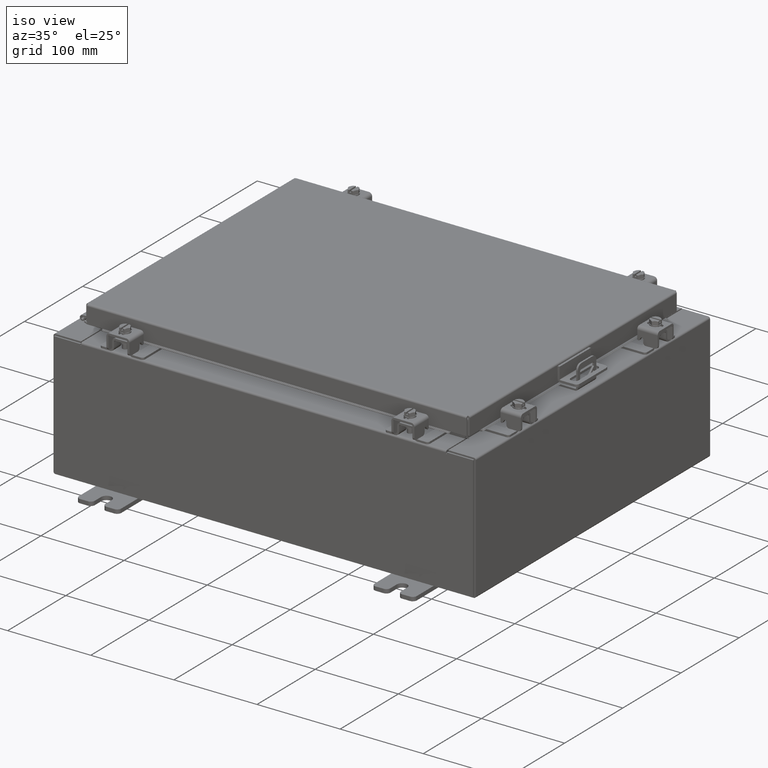
[diagram: clean part render]
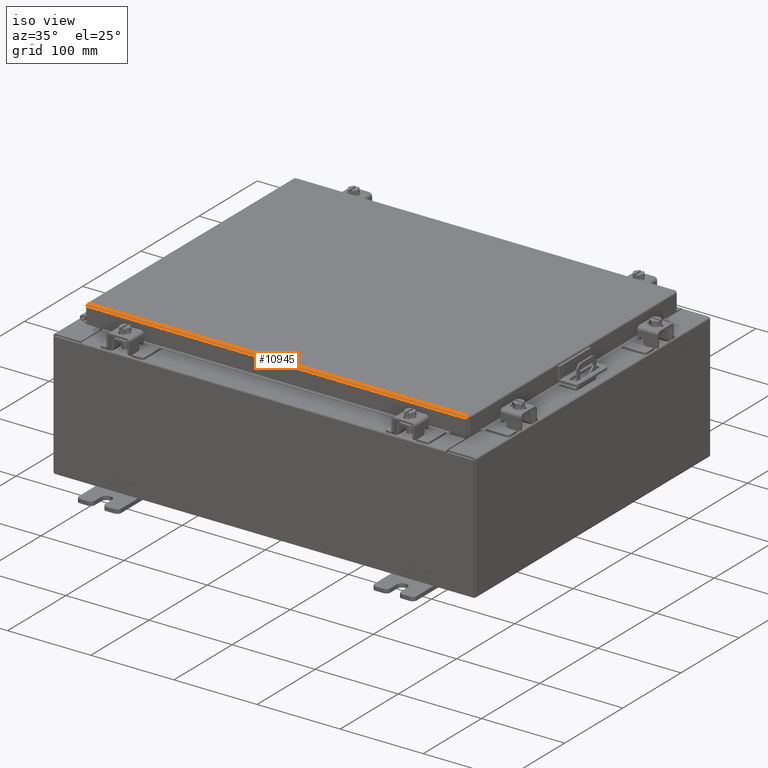
[diagram: same view with one face highlighted and labeled with its STEP entity id]
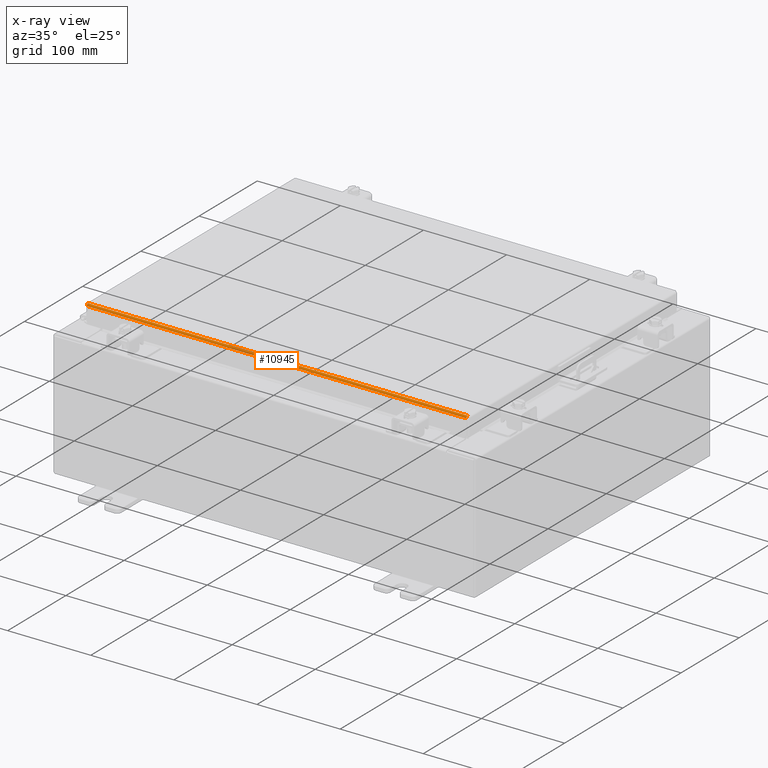
[diagram: x-ray of the same camera — body ghosted, the highlighted face saturated]
A machine part, iso view. The second image highlights one B-rep face of the part: STEP entity #10945.
The next image is the same camera in x-ray: the body ghosted, the highlighted face saturated — about 0% of this face is hidden behind the body in this view.
In plain terms, the highlighted cylindrical surface (edge-blend (fillet) strip) has radius 2.2276 mm, axis along (-1, 0, 0).
Its self-contained STEP definition (entity closure, byte-faithful):
#639 = CARTESIAN_POINT ( 'NONE',  ( -8.989348220313557300, -7.091717403743810900, -0.06474471054169121700 ) ) ;
#711 = CARTESIAN_POINT ( 'NONE',  ( 8.989919288125422600, -7.050467384578524000, -0.01106893374133176100 ) ) ;
#800 = EDGE_LOOP ( 'NONE', ( #8349, #23452, #14253, #12008 ) ) ;
#1583 = DIRECTION ( 'NONE',  ( 1.000000000000000000, 3.393150142274114000E-031, -9.248938716548952900E-046 ) ) ;
#1910 = CARTESIAN_POINT ( 'NONE',  ( -8.990299999999997700, -7.006299999999998600, -2.048885995248197400E-016 ) ) ;
#2657 = CARTESIAN_POINT ( 'NONE',  ( -8.989633754219488200, -7.076430782078319700, -0.03380425265820009200 ) ) ;
#2742 = CARTESIAN_POINT ( 'NONE',  ( 8.989633754219491700, -7.076430782078318800, -0.03380425265820009900 ) ) ;
#2867 = AXIS2_PLACEMENT_3D ( 'NONE', #7902, #12307, #20006 ) ;
#4707 = CARTESIAN_POINT ( 'NONE',  ( -8.989919288125420800, -7.050467384578526600, -0.01106893374133176100 ) ) ;
#4771 = CARTESIAN_POINT ( 'NONE',  ( 8.989348220313557300, -7.091717403743812700, -0.06474471054169121700 ) ) ;
#5148 = EDGE_CURVE ( 'NONE', #17809, #12739, #18551, .T. ) ;
#6273 = CARTESIAN_POINT ( 'NONE',  ( -8.990299999999997700, -7.006299999999998600, -2.048885995248197400E-016 ) ) ;
#6693 = CARTESIAN_POINT ( 'NONE',  ( -8.990204822031351700, -7.017779903154992600, -2.038214714022946300E-016 ) ) ;
#6773 = VECTOR ( 'NONE', #22133, 39.37007874015748100 ) ;
#6783 = CARTESIAN_POINT ( 'NONE',  ( 8.989157864376268800, -7.093999999999999400, -0.08770000000000007000 ) ) ;
#7902 = CARTESIAN_POINT ( 'NONE',  ( -8.990299999999997700, -7.006299999999998600, -0.08770000000000030500 ) ) ;
#8349 = ORIENTED_EDGE ( 'NONE', *, *, #13257, .F. ) ;
#8649 = CARTESIAN_POINT ( 'NONE',  ( -8.989157864376267100, -7.093999999999999400, -0.08770000000000007000 ) ) ;
#8863 = CYLINDRICAL_SURFACE ( 'NONE', #2867, 0.08770000000000026400 ) ;
#10063 = B_SPLINE_CURVE_WITH_KNOTS ( 'NONE', 3,
 ( #12777, #22862, #16740, #711, #14792, #2742, #16839, #4771, #18888, #6783 ),
 .UNSPECIFIED., .F., .F.,
 ( 4, 2, 2, 2, 4 ),
 ( 0.0000000000000000000, 0.2500000000000000000, 0.5000000000000000000, 0.7500000000000000000, 1.000000000000000000 ),
 .UNSPECIFIED. ) ;
#10752 = FACE_OUTER_BOUND ( 'NONE', #800, .T. ) ;
#10945 = ADVANCED_FACE ( 'NONE', ( #10752 ), #8863, .T. ) ;
#12008 = ORIENTED_EDGE ( 'NONE', *, *, #14347, .F. ) ;
#12307 = DIRECTION ( 'NONE',  ( -1.000000000000000000, 0.0000000000000000000, 0.0000000000000000000 ) ) ;
#12739 = VERTEX_POINT ( 'NONE', #6273 ) ;
#12777 = CARTESIAN_POINT ( 'NONE',  ( 8.990299999999999500, -7.006299999999998600, -7.512581982576723400E-016 ) ) ;
#13257 = EDGE_CURVE ( 'NONE', #12739, #16020, #22276, .T. ) ;
#14253 = ORIENTED_EDGE ( 'NONE', *, *, #17251, .T. ) ;
#14347 = EDGE_CURVE ( 'NONE', #16020, #21383, #10063, .T. ) ;
#14718 = CARTESIAN_POINT ( 'NONE',  ( -8.989538576250842200, -7.082931066258664600, -0.04353261542147222900 ) ) ;
#14792 = CARTESIAN_POINT ( 'NONE',  ( 8.989824110156780200, -7.060195747341801100, -0.01756921792167976500 ) ) ;
#15022 = CARTESIAN_POINT ( 'NONE',  ( 8.990299999999999500, -7.006299999999998600, -7.512581982576723400E-016 ) ) ;
#16020 = VERTEX_POINT ( 'NONE', #15022 ) ;
#16405 = CARTESIAN_POINT ( 'NONE',  ( 8.989157864376268800, -7.093999999999999400, -0.08770000000000007000 ) ) ;
#16740 = CARTESIAN_POINT ( 'NONE',  ( 8.990109644062712800, -7.029255289458308900, -0.002282596256188923400 ) ) ;
#16742 = CARTESIAN_POINT ( 'NONE',  ( -8.989824110156776600, -7.060195747341801100, -0.01756921792167976500 ) ) ;
#16839 = CARTESIAN_POINT ( 'NONE',  ( 8.989538576250845700, -7.082931066258667300, -0.04353261542147223600 ) ) ;
#17251 = EDGE_CURVE ( 'NONE', #17809, #21383, #20757, .T. ) ;
#17809 = VERTEX_POINT ( 'NONE', #19397 ) ;
#18551 = B_SPLINE_CURVE_WITH_KNOTS ( 'NONE', 3,
 ( #8649, #22770, #639, #14718, #2657, #16742, #4707, #18811, #6693, #20831 ),
 .UNSPECIFIED., .F., .F.,
 ( 4, 2, 2, 2, 4 ),
 ( 0.0000000000000000000, 0.2500000000000000000, 0.5000000000000000000, 0.7500000000000000000, 1.000000000000000000 ),
 .UNSPECIFIED. ) ;
#18811 = CARTESIAN_POINT ( 'NONE',  ( -8.990109644062707500, -7.029255289458307100, -0.002282596256188923000 ) ) ;
#18888 = CARTESIAN_POINT ( 'NONE',  ( 8.989253042344914800, -7.093999999999999400, -0.07622009684500738500 ) ) ;
#19397 = CARTESIAN_POINT ( 'NONE',  ( -8.989157864376267100, -7.093999999999999400, -0.08770000000000007000 ) ) ;
#20006 = DIRECTION ( 'NONE',  ( 0.0000000000000000000, -1.000000000000000000, 2.725618009642215600E-015 ) ) ;
#20757 = LINE ( 'NONE', #21723, #25493 ) ;
#20831 = CARTESIAN_POINT ( 'NONE',  ( -8.990299999999997700, -7.006299999999998600, -2.048885995248197400E-016 ) ) ;
#21383 = VERTEX_POINT ( 'NONE', #16405 ) ;
#21723 = CARTESIAN_POINT ( 'NONE',  ( 9.077999999999999400, -7.093999999999999400, -0.08770000000000007000 ) ) ;
#22133 = DIRECTION ( 'NONE',  ( 1.000000000000000000, -0.0000000000000000000, -0.0000000000000000000 ) ) ;
#22276 = LINE ( 'NONE', #1910, #6773 ) ;
#22770 = CARTESIAN_POINT ( 'NONE',  ( -8.989253042344909500, -7.093999999999999400, -0.07622009684500735700 ) ) ;
#22862 = CARTESIAN_POINT ( 'NONE',  ( 8.990204822031353500, -7.017779903154993400, -2.037881236484656600E-016 ) ) ;
#23452 = ORIENTED_EDGE ( 'NONE', *, *, #5148, .F. ) ;
#25493 = VECTOR ( 'NONE', #1583, 39.37007874015748100 ) ;